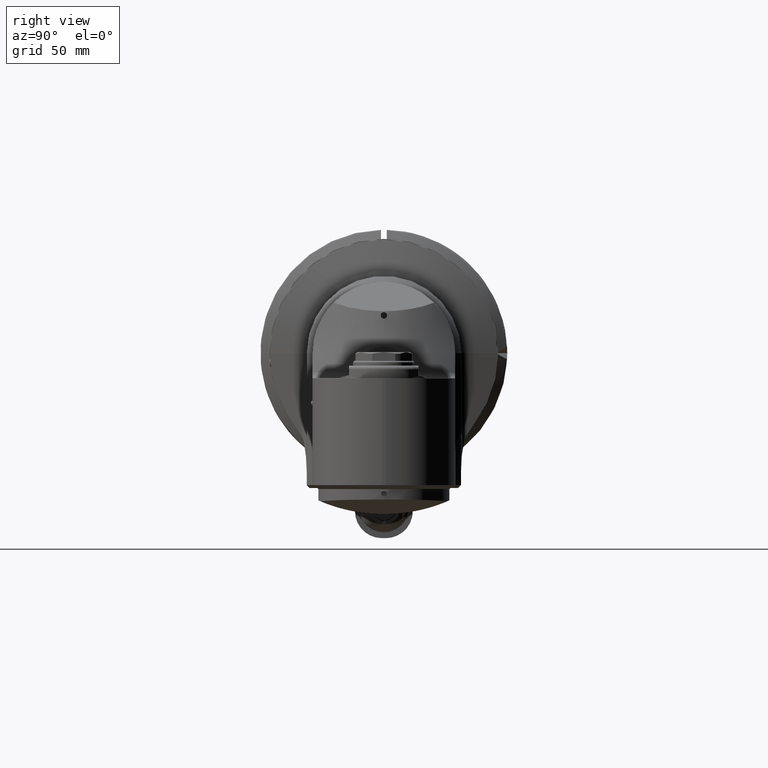
[diagram: clean part render]
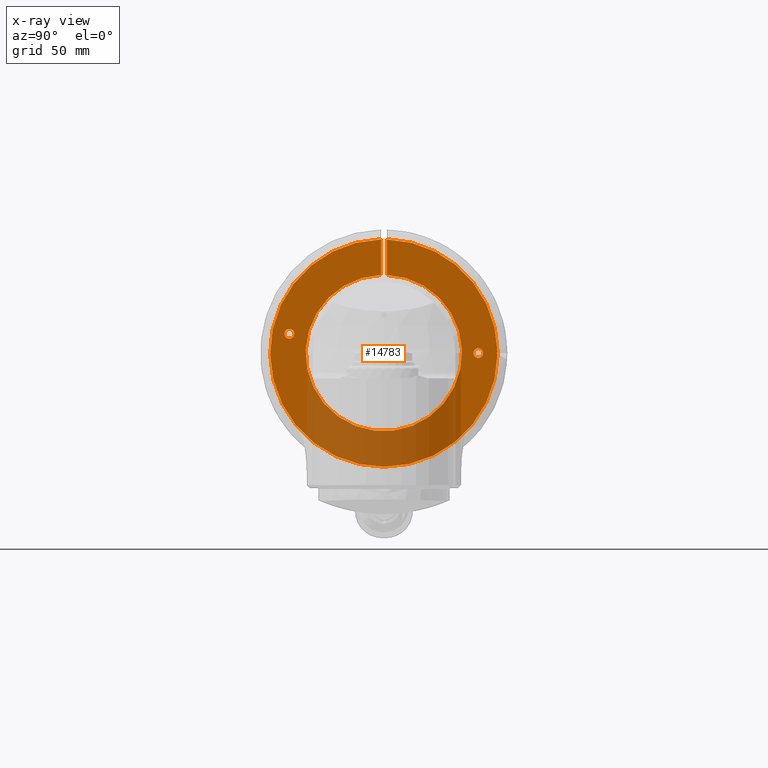
[diagram: x-ray — body ghosted, one internal face saturated and labeled with its STEP entity id]
A machine part, right view, then the same camera in x-ray: the body is ghosted and one INTERNAL B-rep face — a face not visible from any outside direction — is saturated and labeled: STEP entity #14783.
In plain terms, the highlighted planar face has unit normal (1, -0, 0).
Its self-contained STEP definition (entity closure, byte-faithful):
#788=LINE('',#24401,#1955);
#789=LINE('',#24442,#1956);
#791=LINE('',#24458,#1958);
#792=LINE('',#24485,#1959);
#1955=VECTOR('',#18084,18.43131315492);
#1956=VECTOR('',#18095,10.);
#1958=VECTOR('',#18099,10.);
#1959=VECTOR('',#18110,18.43131315492);
#3168=FACE_BOUND('',#4736,.T.);
#3169=FACE_BOUND('',#4737,.T.);
#3375=PLANE('',#15925);
#3864=FACE_OUTER_BOUND('',#4735,.T.);
#4735=EDGE_LOOP('',(#11070,#11071,#11072,#11073,#11074,#11075,#11076));
#4736=EDGE_LOOP('',(#11077));
#4737=EDGE_LOOP('',(#11078));
#5712=CIRCLE('',#15882,59.);
#5729=CIRCLE('',#15924,40.57735026919);
#5730=CIRCLE('',#15926,59.);
#5731=CIRCLE('',#15927,2.5);
#5732=CIRCLE('',#15928,2.5);
#6570=VERTEX_POINT('',#24398);
#6571=VERTEX_POINT('',#24400);
#6576=VERTEX_POINT('',#24437);
#6577=VERTEX_POINT('',#24441);
#6578=VERTEX_POINT('',#24445);
#6580=VERTEX_POINT('',#24460);
#6582=VERTEX_POINT('',#24484);
#6606=VERTEX_POINT('',#24688);
#6607=VERTEX_POINT('',#24690);
#8288=EDGE_CURVE('',#6571,#6570,#788,.T.);
#8296=EDGE_CURVE('',#6577,#6576,#789,.T.);
#8300=EDGE_CURVE('',#6578,#6577,#791,.T.);
#8301=EDGE_CURVE('',#6580,#6578,#5712,.T.);
#8305=EDGE_CURVE('',#6582,#6580,#792,.T.);
#8346=EDGE_CURVE('',#6570,#6582,#5729,.T.);
#8347=EDGE_CURVE('',#6576,#6571,#5730,.T.);
#8348=EDGE_CURVE('',#6606,#6606,#5731,.T.);
#8349=EDGE_CURVE('',#6607,#6607,#5732,.T.);
#11070=ORIENTED_EDGE('',*,*,#8347,.T.);
#11071=ORIENTED_EDGE('',*,*,#8288,.T.);
#11072=ORIENTED_EDGE('',*,*,#8346,.T.);
#11073=ORIENTED_EDGE('',*,*,#8305,.T.);
#11074=ORIENTED_EDGE('',*,*,#8301,.T.);
#11075=ORIENTED_EDGE('',*,*,#8300,.T.);
#11076=ORIENTED_EDGE('',*,*,#8296,.T.);
#11077=ORIENTED_EDGE('',*,*,#8348,.T.);
#11078=ORIENTED_EDGE('',*,*,#8349,.T.);
#14783=ADVANCED_FACE('',(#3864,#3168,#3169),#3375,.T.);
#15882=AXIS2_PLACEMENT_3D('',#24461,#18102,#18103);
#15924=AXIS2_PLACEMENT_3D('',#24685,#18198,#18199);
#15925=AXIS2_PLACEMENT_3D('',#24686,#18200,#18201);
#15926=AXIS2_PLACEMENT_3D('',#24687,#18202,#18203);
#15927=AXIS2_PLACEMENT_3D('',#24689,#18204,#18205);
#15928=AXIS2_PLACEMENT_3D('',#24691,#18206,#18207);
#18084=DIRECTION('',(0.,0.,-1.));
#18095=DIRECTION('',(0.75592894601843,0.,0.654653670708006));
#18099=DIRECTION('',(-0.75592894601843,0.,0.654653670708006));
#18102=DIRECTION('center_axis',(0.,-1.,0.));
#18103=DIRECTION('ref_axis',(0.,0.,-1.));
#18110=DIRECTION('',(0.,0.,1.));
#18198=DIRECTION('center_axis',(0.,1.,0.));
#18199=DIRECTION('ref_axis',(0.,0.,-1.));
#18200=DIRECTION('center_axis',(0.,-1.,0.));
#18201=DIRECTION('ref_axis',(0.,0.,1.));
#18202=DIRECTION('center_axis',(0.,-1.,0.));
#18203=DIRECTION('ref_axis',(0.999973237557454,0.,0.00731602138204067));
#18204=DIRECTION('center_axis',(0.,1.,0.));
#18205=DIRECTION('ref_axis',(-1.,0.,0.));
#18206=DIRECTION('center_axis',(0.,1.,0.));
#18207=DIRECTION('ref_axis',(-1.,0.,0.));
#24398=CARTESIAN_POINT('',(1.499999846154,1.894780628694E-14,40.54961597019));
#24400=CARTESIAN_POINT('',(1.499999846154,0.,58.98092912511));
#24401=CARTESIAN_POINT('',(1.499999846154,0.,58.98092912511));
#24437=CARTESIAN_POINT('',(58.9984211035747,2.48269226475992E-8,0.431645372949116));
#24441=CARTESIAN_POINT('',(58.5,0.,-4.853054148696E-14));
#24442=CARTESIAN_POINT('',(63.8447075439727,0.,4.62865250887851));
#24445=CARTESIAN_POINT('',(58.9984211035661,2.48245060114878E-8,-0.431645372941069));
#24458=CARTESIAN_POINT('',(39.8692703756239,0.,16.134685145748));
#24460=CARTESIAN_POINT('',(-1.499999846154,0.,58.98092912511));
#24461=CARTESIAN_POINT('Origin',(0.,-2.13162820728E-14,0.));
#24484=CARTESIAN_POINT('',(-1.499999846154,7.105427357601E-14,40.54961597019));
#24485=CARTESIAN_POINT('',(-1.499999846154,1.894780628694E-14,40.54961597019));
#24685=CARTESIAN_POINT('Origin',(0.,7.105427357601E-14,0.));
#24686=CARTESIAN_POINT('Origin',(0.,0.,60.46860314096));
#24687=CARTESIAN_POINT('Origin',(0.,-2.13162820728E-14,0.));
#24688=CARTESIAN_POINT('',(51.5,0.,0.));
#24689=CARTESIAN_POINT('Origin',(49.,0.,0.));
#24690=CARTESIAN_POINT('',(-46.5,0.,10.));
#24691=CARTESIAN_POINT('Origin',(-49.,0.,10.));